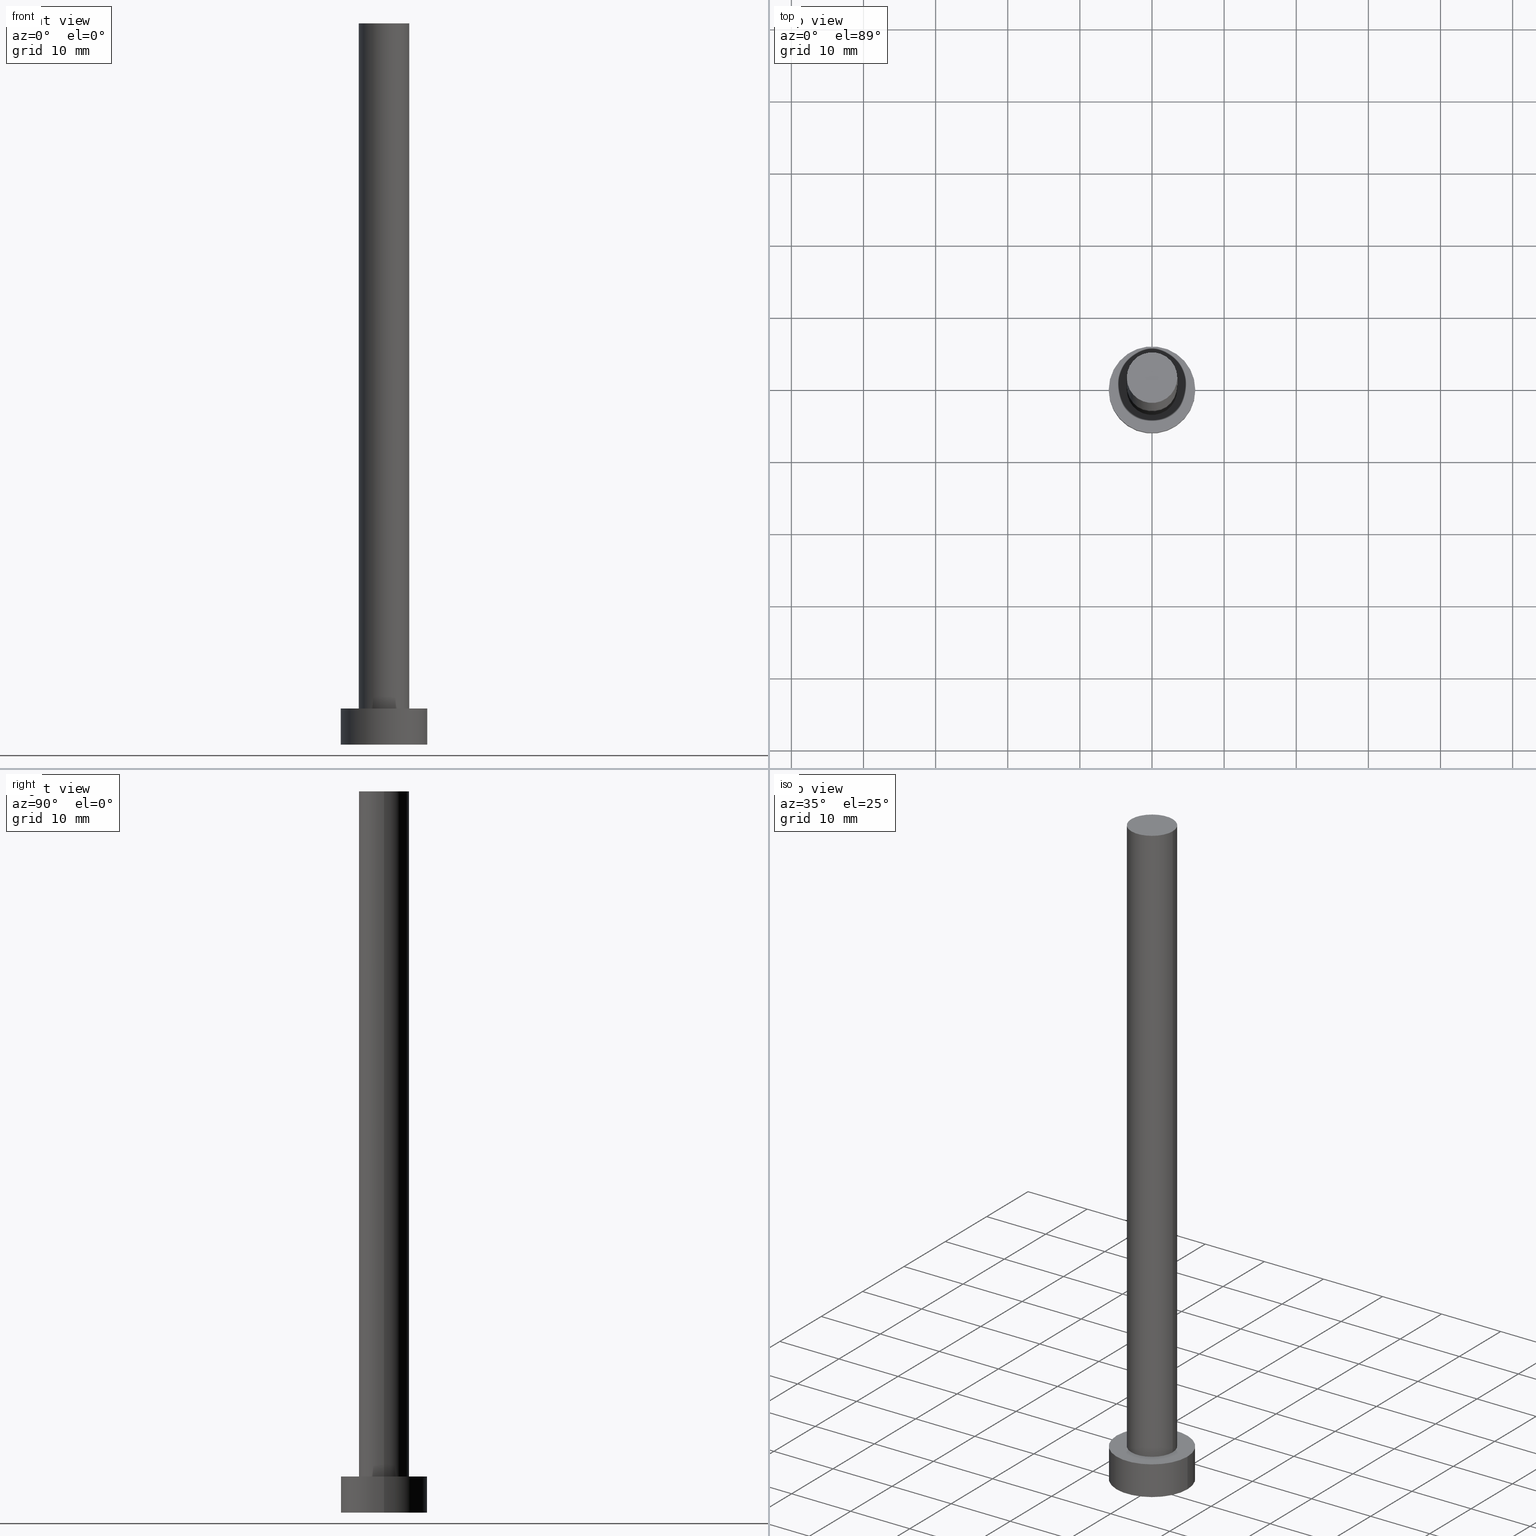
[diagram: canonical four-view strip — front | top / right | iso, engineering-drawing reading convention]
A machine part, canonical four-view strip (front | top / right | iso — engineering-drawing reading convention). The complete STEP part file that produces these views, byte-faithful:
ISO-10303-21;
HEADER;
FILE_DESCRIPTION (( 'STEP AP203' ),
    '1' );
FILE_NAME ('d741.STEP',
    '2023-02-13T15:15:37',
    ( '' ),
    ( '' ),
    'SwSTEP 2.0',
    'SolidWorks 2019',
    '' );
FILE_SCHEMA (( 'CONFIG_CONTROL_DESIGN' ));
ENDSEC;

DATA;
#1 = PERSON_AND_ORGANIZATION ( #190, #118 ) ;
#2 = ORIENTED_EDGE ( 'NONE', *, *, #59, .T. ) ;
#3 = ORIENTED_EDGE ( 'NONE', *, *, #110, .T. ) ;
#4 = AXIS2_PLACEMENT_3D ( 'NONE', #9, #80, #176 ) ;
#5 = DIRECTION ( 'NONE',  ( -0.000000000000000000, -0.000000000000000000, -1.000000000000000000 ) ) ;
#6 = DIRECTION ( 'NONE',  ( -1.000000000000000000, 0.000000000000000000, 0.000000000000000000 ) ) ;
#7 = EDGE_LOOP ( 'NONE', ( #102, #42 ) ) ;
#8 = AXIS2_PLACEMENT_3D ( 'NONE', #114, #93, #191 ) ;
#9 = CARTESIAN_POINT ( 'NONE',  ( 0.000000000000000000, 0.000000000000000000, 5.000000000000000000 ) ) ;
#10 = DIRECTION ( 'NONE',  ( 0.000000000000000000, 0.000000000000000000, 1.000000000000000000 ) ) ;
#11 = DIRECTION ( 'NONE',  ( 0.000000000000000000, 0.000000000000000000, 1.000000000000000000 ) ) ;
#12 = DATE_TIME_ROLE ( 'classification_date' ) ;
#13 = CARTESIAN_POINT ( 'NONE',  ( 0.000000000000000000, 0.000000000000000000, 100.0000000000000000 ) ) ;
#14 = AXIS2_PLACEMENT_3D ( 'NONE', #169, #185, #67 ) ;
#15 = DATE_TIME_ROLE ( 'creation_date' ) ;
#16 = ORIENTED_EDGE ( 'NONE', *, *, #103, .T. ) ;
#17 = LOCAL_TIME ( 16, 15, 37.00000000000000000, #83 ) ;
#18 = VERTEX_POINT ( 'NONE', #170 ) ;
#19 = ORIENTED_EDGE ( 'NONE', *, *, #193, .F. ) ;
#20 = PERSON_AND_ORGANIZATION_ROLE ( 'creator' ) ;
#21 = CC_DESIGN_SECURITY_CLASSIFICATION ( #92, ( #58 ) ) ;
#22 = ORIENTED_EDGE ( 'NONE', *, *, #234, .T. ) ;
#23 = ORIENTED_EDGE ( 'NONE', *, *, #59, .F. ) ;
#24 = PRODUCT_DEFINITION_SHAPE ( 'NONE', 'NONE',  #116 ) ;
#25 = PRODUCT_RELATED_PRODUCT_CATEGORY ( 'detail', '', ( #151 ) ) ;
#26 = DIRECTION ( 'NONE',  ( -1.000000000000000000, 0.000000000000000000, 0.000000000000000000 ) ) ;
#27 = LOCAL_TIME ( 16, 15, 37.00000000000000000, #54 ) ;
#28 = ORIENTED_EDGE ( 'NONE', *, *, #110, .F. ) ;
#29 = EDGE_LOOP ( 'NONE', ( #51, #111, #173, #22 ) ) ;
#30 = CIRCLE ( 'NONE', #209, 3.500000000000000000 ) ;
#31 = EDGE_CURVE ( 'NONE', #18, #154, #45, .T. ) ;
#32 = PLANE ( 'NONE',  #8 ) ;
#33 = PLANE ( 'NONE',  #141 ) ;
#34 = DIRECTION ( 'NONE',  ( -1.000000000000000000, 0.000000000000000000, 0.000000000000000000 ) ) ;
#35 = CC_DESIGN_PERSON_AND_ORGANIZATION_ASSIGNMENT ( #1, #86, ( #58 ) ) ;
#36 = APPROVAL_PERSON_ORGANIZATION ( #159, #229, #166 ) ;
#37 = CALENDAR_DATE ( 2023, 13, 2 ) ;
#38 = PERSON_AND_ORGANIZATION ( #190, #118 ) ;
#39 = ADVANCED_FACE ( 'NONE', ( #243 ), #105, .T. ) ;
#40 = CARTESIAN_POINT ( 'NONE',  ( 0.000000000000000000, 0.000000000000000000, 0.000000000000000000 ) ) ;
#41 = APPLICATION_PROTOCOL_DEFINITION ( 'international standard', 'config_control_design', 1994, #163 ) ;
#42 = ORIENTED_EDGE ( 'NONE', *, *, #213, .T. ) ;
#43 = CC_DESIGN_DATE_AND_TIME_ASSIGNMENT ( #77, #12, ( #92 ) ) ;
#44 = PERSON_AND_ORGANIZATION_ROLE ( 'design_owner' ) ;
#45 = CIRCLE ( 'NONE', #188, 6.000000000000000888 ) ;
#46 = CYLINDRICAL_SURFACE ( 'NONE', #14, 6.000000000000000888 ) ;
#47 = FACE_OUTER_BOUND ( 'NONE', #187, .T. ) ;
#48 = CARTESIAN_POINT ( 'NONE',  ( 0.000000000000000000, 0.000000000000000000, 5.000000000000000000 ) ) ;
#49 = CIRCLE ( 'NONE', #227, 6.000000000000000888 ) ;
#50 = CARTESIAN_POINT ( 'NONE',  ( 0.000000000000000000, 0.000000000000000000, 100.0000000000000000 ) ) ;
#51 = ORIENTED_EDGE ( 'NONE', *, *, #220, .F. ) ;
#52 = CARTESIAN_POINT ( 'NONE',  ( 6.000000000000000888, 7.347880794884120722E-16, 5.000000000000000000 ) ) ;
#53 = CIRCLE ( 'NONE', #198, 3.500000000000000000 ) ;
#54 = COORDINATED_UNIVERSAL_TIME_OFFSET ( 1, 0, .AHEAD. ) ;
#55 = LINE ( 'NONE', #117, #157 ) ;
#56 = CYLINDRICAL_SURFACE ( 'NONE', #126, 3.500000000000000000 ) ;
#57 = CARTESIAN_POINT ( 'NONE',  ( 6.000000000000000888, 7.347880794884120722E-16, 5.000000000000000000 ) ) ;
#58 = PRODUCT_DEFINITION_FORMATION_WITH_SPECIFIED_SOURCE ( 'LIBOVOLN�', '', #151, .NOT_KNOWN. ) ;
#59 = EDGE_CURVE ( 'NONE', #112, #241, #30, .T. ) ;
#60 = COORDINATED_UNIVERSAL_TIME_OFFSET ( 1, 0, .AHEAD. ) ;
#61 = VERTEX_POINT ( 'NONE', #156 ) ;
#62 =( NAMED_UNIT ( * ) PLANE_ANGLE_UNIT ( ) SI_UNIT ( $, .RADIAN. ) );
#63 = LOCAL_TIME ( 16, 15, 37.00000000000000000, #216 ) ;
#64 = ORIENTED_EDGE ( 'NONE', *, *, #196, .F. ) ;
#65 = APPLICATION_PROTOCOL_DEFINITION ( 'international standard', 'config_control_design', 1994, #107 ) ;
#66 = VERTEX_POINT ( 'NONE', #108 ) ;
#67 = DIRECTION ( 'NONE',  ( -1.000000000000000000, 0.000000000000000000, 0.000000000000000000 ) ) ;
#68 = UNCERTAINTY_MEASURE_WITH_UNIT (LENGTH_MEASURE( 1.000000000000000082E-05 ), #254, 'distance_accuracy_value', 'NONE');
#69 = APPROVAL ( #199, 'NEUR�EN�' ) ;
#70 = CARTESIAN_POINT ( 'NONE',  ( 6.000000000000000888, 7.347880794884120722E-16, 0.000000000000000000 ) ) ;
#71 = DIRECTION ( 'NONE',  ( 0.000000000000000000, 0.000000000000000000, 1.000000000000000000 ) ) ;
#72 = EDGE_CURVE ( 'NONE', #223, #61, #99, .T. ) ;
#73 = DIRECTION ( 'NONE',  ( 1.000000000000000000, 0.000000000000000000, 0.000000000000000000 ) ) ;
#74 = DIRECTION ( 'NONE',  ( -0.000000000000000000, -0.000000000000000000, -1.000000000000000000 ) ) ;
#75 = CARTESIAN_POINT ( 'NONE',  ( 0.000000000000000000, 0.000000000000000000, 100.0000000000000000 ) ) ;
#76 = DIRECTION ( 'NONE',  ( 1.000000000000000000, 0.000000000000000000, 0.000000000000000000 ) ) ;
#77 = DATE_AND_TIME ( #119, #63 ) ;
#78 = CC_DESIGN_APPROVAL ( #69, ( #116 ) ) ;
#79 = CARTESIAN_POINT ( 'NONE',  ( 0.000000000000000000, 0.000000000000000000, 5.000000000000000000 ) ) ;
#80 = DIRECTION ( 'NONE',  ( 0.000000000000000000, 0.000000000000000000, 1.000000000000000000 ) ) ;
#81 = SECURITY_CLASSIFICATION_LEVEL ( 'unclassified' ) ;
#82 = DIRECTION ( 'NONE',  ( 0.000000000000000000, 0.000000000000000000, 1.000000000000000000 ) ) ;
#83 = COORDINATED_UNIVERSAL_TIME_OFFSET ( 1, 0, .AHEAD. ) ;
#84 = AXIS2_PLACEMENT_3D ( 'NONE', #97, #134, #210 ) ;
#85 = EDGE_LOOP ( 'NONE', ( #23, #132, #3, #225 ) ) ;
#86 = PERSON_AND_ORGANIZATION_ROLE ( 'design_supplier' ) ;
#87 = DIRECTION ( 'NONE',  ( 1.000000000000000000, 0.000000000000000000, 0.000000000000000000 ) ) ;
#88 = CARTESIAN_POINT ( 'NONE',  ( -3.500000000000000000, 0.000000000000000000, 100.0000000000000000 ) ) ;
#89 = CARTESIAN_POINT ( 'NONE',  ( 0.000000000000000000, 0.000000000000000000, 5.000000000000000000 ) ) ;
#90 = ORIENTED_EDGE ( 'NONE', *, *, #113, .F. ) ;
#91 = DIRECTION ( 'NONE',  ( 1.000000000000000000, 0.000000000000000000, 0.000000000000000000 ) ) ;
#92 = SECURITY_CLASSIFICATION ( '', '', #81 ) ;
#93 = DIRECTION ( 'NONE',  ( 0.000000000000000000, 0.000000000000000000, 1.000000000000000000 ) ) ;
#94 = ADVANCED_FACE ( 'NONE', ( #158 ), #46, .T. ) ;
#95 = FACE_BOUND ( 'NONE', #255, .T. ) ;
#96 = CALENDAR_DATE ( 2023, 13, 2 ) ;
#97 = CARTESIAN_POINT ( 'NONE',  ( 0.000000000000000000, 0.000000000000000000, 0.000000000000000000 ) ) ;
#98 = APPROVAL_STATUS ( 'not_yet_approved' ) ;
#99 = CIRCLE ( 'NONE', #167, 3.500000000000000000 ) ;
#100 =( NAMED_UNIT ( * ) SI_UNIT ( $, .STERADIAN. ) SOLID_ANGLE_UNIT ( ) );
#101 = CLOSED_SHELL ( 'NONE', ( #253, #129, #94, #211, #140, #39, #240 ) ) ;
#102 = ORIENTED_EDGE ( 'NONE', *, *, #31, .T. ) ;
#103 = EDGE_CURVE ( 'NONE', #241, #223, #222, .T. ) ;
#104 = PERSON_AND_ORGANIZATION ( #190, #118 ) ;
#105 = CYLINDRICAL_SURFACE ( 'NONE', #180, 3.500000000000000000 ) ;
#106 = CYLINDRICAL_SURFACE ( 'NONE', #146, 6.000000000000000888 ) ;
#107 = APPLICATION_CONTEXT ( 'configuration controlled 3d designs of mechanical parts and assemblies' ) ;
#108 = CARTESIAN_POINT ( 'NONE',  ( -6.000000000000000888, 0.000000000000000000, 0.000000000000000000 ) ) ;
#109 = LOCAL_TIME ( 16, 15, 37.00000000000000000, #215 ) ;
#110 = EDGE_CURVE ( 'NONE', #61, #223, #53, .T. ) ;
#111 = ORIENTED_EDGE ( 'NONE', *, *, #31, .F. ) ;
#112 = VERTEX_POINT ( 'NONE', #238 ) ;
#113 = EDGE_CURVE ( 'NONE', #130, #66, #49, .T. ) ;
#114 = CARTESIAN_POINT ( 'NONE',  ( 0.000000000000000000, 0.000000000000000000, 100.0000000000000000 ) ) ;
#115 = AXIS2_PLACEMENT_3D ( 'NONE', #79, #160, #161 ) ;
#116 = PRODUCT_DEFINITION ( 'NEZN�M�', '', #58, #244 ) ;
#117 = CARTESIAN_POINT ( 'NONE',  ( 3.500000000000000000, 4.286263797015736595E-16, 100.0000000000000000 ) ) ;
#118 = ORGANIZATION ( 'NEUR�EN�', 'NEUR�EN�', '' ) ;
#119 = CALENDAR_DATE ( 2023, 13, 2 ) ;
#120 = DIRECTION ( 'NONE',  ( 1.000000000000000000, 0.000000000000000000, 0.000000000000000000 ) ) ;
#121 = PERSON_AND_ORGANIZATION ( #190, #118 ) ;
#122 = EDGE_LOOP ( 'NONE', ( #189, #2 ) ) ;
#123 = ORIENTED_EDGE ( 'NONE', *, *, #220, .T. ) ;
#124 = DATE_AND_TIME ( #200, #17 ) ;
#125 = APPROVAL_DATE_TIME ( #136, #229 ) ;
#126 = AXIS2_PLACEMENT_3D ( 'NONE', #75, #214, #34 ) ;
#127 = ORIENTED_EDGE ( 'NONE', *, *, #72, .T. ) ;
#128 = DIRECTION ( 'NONE',  ( 0.000000000000000000, 0.000000000000000000, 1.000000000000000000 ) ) ;
#129 = ADVANCED_FACE ( 'NONE', ( #47 ), #106, .T. ) ;
#130 = VERTEX_POINT ( 'NONE', #70 ) ;
#131 = ORIENTED_EDGE ( 'NONE', *, *, #113, .T. ) ;
#132 = ORIENTED_EDGE ( 'NONE', *, *, #193, .T. ) ;
#133 = VECTOR ( 'NONE', #5, 1000.000000000000000 ) ;
#134 = DIRECTION ( 'NONE',  ( 0.000000000000000000, 0.000000000000000000, 1.000000000000000000 ) ) ;
#135 = CC_DESIGN_PERSON_AND_ORGANIZATION_ASSIGNMENT ( #237, #20, ( #116 ) ) ;
#136 = DATE_AND_TIME ( #230, #27 ) ;
#137 = DIRECTION ( 'NONE',  ( -0.000000000000000000, -0.000000000000000000, -1.000000000000000000 ) ) ;
#138 = APPROVAL_PERSON_ORGANIZATION ( #121, #69, #183 ) ;
#139 = FACE_OUTER_BOUND ( 'NONE', #7, .T. ) ;
#140 = ADVANCED_FACE ( 'NONE', ( #155 ), #33, .F. ) ;
#141 = AXIS2_PLACEMENT_3D ( 'NONE', #195, #10, #228 ) ;
#142 = SHAPE_DEFINITION_REPRESENTATION ( #24, #150 ) ;
#143 = AXIS2_PLACEMENT_3D ( 'NONE', #13, #11, #76 ) ;
#144 = PERSON_AND_ORGANIZATION ( #190, #118 ) ;
#145 = EDGE_LOOP ( 'NONE', ( #19, #148, #16, #127 ) ) ;
#146 = AXIS2_PLACEMENT_3D ( 'NONE', #89, #239, #26 ) ;
#147 = CC_DESIGN_PERSON_AND_ORGANIZATION_ASSIGNMENT ( #144, #236, ( #92 ) ) ;
#148 = ORIENTED_EDGE ( 'NONE', *, *, #181, .F. ) ;
#149 = CC_DESIGN_DATE_AND_TIME_ASSIGNMENT ( #197, #15, ( #116 ) ) ;
#150 = ADVANCED_BREP_SHAPE_REPRESENTATION ( 'd741', ( #175, #224 ), #218 ) ;
#151 = PRODUCT ( 'd741', 'd741', '', ( #219 ) ) ;
#152 = CIRCLE ( 'NONE', #4, 6.000000000000000888 ) ;
#153 = ORIENTED_EDGE ( 'NONE', *, *, #72, .F. ) ;
#154 = VERTEX_POINT ( 'NONE', #57 ) ;
#155 = FACE_OUTER_BOUND ( 'NONE', #165, .T. ) ;
#156 = CARTESIAN_POINT ( 'NONE',  ( 3.500000000000000000, 4.286263797015736595E-16, 5.000000000000000000 ) ) ;
#157 = VECTOR ( 'NONE', #137, 1000.000000000000000 ) ;
#158 = FACE_OUTER_BOUND ( 'NONE', #29, .T. ) ;
#159 = PERSON_AND_ORGANIZATION ( #190, #118 ) ;
#160 = DIRECTION ( 'NONE',  ( 0.000000000000000000, 0.000000000000000000, 1.000000000000000000 ) ) ;
#161 = DIRECTION ( 'NONE',  ( 1.000000000000000000, 0.000000000000000000, -0.000000000000000000 ) ) ;
#162 = CC_DESIGN_APPROVAL ( #207, ( #92 ) ) ;
#163 = APPLICATION_CONTEXT ( 'configuration controlled 3d designs of mechanical parts and assemblies' ) ;
#164 = VECTOR ( 'NONE', #248, 1000.000000000000000 ) ;
#165 = EDGE_LOOP ( 'NONE', ( #186, #90 ) ) ;
#166 = APPROVAL_ROLE ( '' ) ;
#167 = AXIS2_PLACEMENT_3D ( 'NONE', #208, #128, #91 ) ;
#168 = DIRECTION ( 'NONE',  ( 1.000000000000000000, 0.000000000000000000, 0.000000000000000000 ) ) ;
#169 = CARTESIAN_POINT ( 'NONE',  ( 0.000000000000000000, 0.000000000000000000, 5.000000000000000000 ) ) ;
#170 = CARTESIAN_POINT ( 'NONE',  ( -6.000000000000000888, 0.000000000000000000, 5.000000000000000000 ) ) ;
#171 = CIRCLE ( 'NONE', #143, 3.500000000000000000 ) ;
#172 = CARTESIAN_POINT ( 'NONE',  ( 0.000000000000000000, 0.000000000000000000, 100.0000000000000000 ) ) ;
#173 = ORIENTED_EDGE ( 'NONE', *, *, #196, .T. ) ;
#174 = CARTESIAN_POINT ( 'NONE',  ( -3.500000000000000000, 0.000000000000000000, 100.0000000000000000 ) ) ;
#175 = MANIFOLD_SOLID_BREP ( 'P�idat vysunut�m3', #101 ) ;
#176 = DIRECTION ( 'NONE',  ( 1.000000000000000000, 0.000000000000000000, 0.000000000000000000 ) ) ;
#177 = CC_DESIGN_APPROVAL ( #229, ( #58 ) ) ;
#178 = DATE_AND_TIME ( #96, #235 ) ;
#179 = PLANE ( 'NONE',  #115 ) ;
#180 = AXIS2_PLACEMENT_3D ( 'NONE', #172, #74, #6 ) ;
#181 = EDGE_CURVE ( 'NONE', #241, #112, #171, .T. ) ;
#182 = APPROVAL_DATE_TIME ( #124, #69 ) ;
#183 = APPROVAL_ROLE ( '' ) ;
#184 = PERSON_AND_ORGANIZATION_ROLE ( 'creator' ) ;
#185 = DIRECTION ( 'NONE',  ( -0.000000000000000000, -0.000000000000000000, -1.000000000000000000 ) ) ;
#186 = ORIENTED_EDGE ( 'NONE', *, *, #234, .F. ) ;
#187 = EDGE_LOOP ( 'NONE', ( #201, #123, #131, #64 ) ) ;
#188 = AXIS2_PLACEMENT_3D ( 'NONE', #245, #206, #87 ) ;
#189 = ORIENTED_EDGE ( 'NONE', *, *, #181, .T. ) ;
#190 = PERSON ( 'NEUR�EN�', 'NEUR�EN�', 'NEUR�EN�', ('NEUR�EN�'), ('NEUR�EN�'), ('NEUR�EN�') ) ;
#191 = DIRECTION ( 'NONE',  ( 1.000000000000000000, 0.000000000000000000, -0.000000000000000000 ) ) ;
#192 = CARTESIAN_POINT ( 'NONE',  ( -6.000000000000000888, 0.000000000000000000, 5.000000000000000000 ) ) ;
#193 = EDGE_CURVE ( 'NONE', #112, #61, #55, .T. ) ;
#194 = LINE ( 'NONE', #192, #252 ) ;
#195 = CARTESIAN_POINT ( 'NONE',  ( 0.000000000000000000, 0.000000000000000000, 0.000000000000000000 ) ) ;
#196 = EDGE_CURVE ( 'NONE', #18, #66, #194, .T. ) ;
#197 = DATE_AND_TIME ( #37, #109 ) ;
#198 = AXIS2_PLACEMENT_3D ( 'NONE', #48, #202, #168 ) ;
#199 = APPROVAL_STATUS ( 'not_yet_approved' ) ;
#200 = CALENDAR_DATE ( 2023, 13, 2 ) ;
#201 = ORIENTED_EDGE ( 'NONE', *, *, #213, .F. ) ;
#202 = DIRECTION ( 'NONE',  ( 0.000000000000000000, 0.000000000000000000, 1.000000000000000000 ) ) ;
#203 = DIRECTION ( 'NONE',  ( 0.000000000000000000, 0.000000000000000000, 1.000000000000000000 ) ) ;
#204 = DIRECTION ( 'NONE',  ( 1.000000000000000000, 0.000000000000000000, 0.000000000000000000 ) ) ;
#205 = APPROVAL_PERSON_ORGANIZATION ( #38, #207, #251 ) ;
#206 = DIRECTION ( 'NONE',  ( 0.000000000000000000, 0.000000000000000000, 1.000000000000000000 ) ) ;
#207 = APPROVAL ( #98, 'NEUR�EN�' ) ;
#208 = CARTESIAN_POINT ( 'NONE',  ( 0.000000000000000000, 0.000000000000000000, 5.000000000000000000 ) ) ;
#209 = AXIS2_PLACEMENT_3D ( 'NONE', #50, #71, #73 ) ;
#210 = DIRECTION ( 'NONE',  ( 1.000000000000000000, 0.000000000000000000, 0.000000000000000000 ) ) ;
#211 = ADVANCED_FACE ( 'NONE', ( #95, #139 ), #179, .T. ) ;
#212 = CARTESIAN_POINT ( 'NONE',  ( -3.500000000000000000, 0.000000000000000000, 5.000000000000000000 ) ) ;
#213 = EDGE_CURVE ( 'NONE', #154, #18, #152, .T. ) ;
#214 = DIRECTION ( 'NONE',  ( -0.000000000000000000, -0.000000000000000000, -1.000000000000000000 ) ) ;
#215 = COORDINATED_UNIVERSAL_TIME_OFFSET ( 1, 0, .AHEAD. ) ;
#216 = COORDINATED_UNIVERSAL_TIME_OFFSET ( 1, 0, .AHEAD. ) ;
#217 = PERSON_AND_ORGANIZATION ( #190, #118 ) ;
#218 =( GEOMETRIC_REPRESENTATION_CONTEXT ( 3 ) GLOBAL_UNCERTAINTY_ASSIGNED_CONTEXT ( ( #68 ) ) GLOBAL_UNIT_ASSIGNED_CONTEXT ( ( #254, #62, #100 ) ) REPRESENTATION_CONTEXT ( 'NONE', 'WORKASPACE' ) );
#219 = MECHANICAL_CONTEXT ( 'NONE', #107, 'mechanical' ) ;
#220 = EDGE_CURVE ( 'NONE', #154, #130, #233, .T. ) ;
#221 = CARTESIAN_POINT ( 'NONE',  ( 0.000000000000000000, 0.000000000000000000, 0.000000000000000000 ) ) ;
#222 = LINE ( 'NONE', #88, #133 ) ;
#223 = VERTEX_POINT ( 'NONE', #212 ) ;
#224 = AXIS2_PLACEMENT_3D ( 'NONE', #40, #82, #120 ) ;
#225 = ORIENTED_EDGE ( 'NONE', *, *, #103, .F. ) ;
#226 = APPROVAL_STATUS ( 'not_yet_approved' ) ;
#227 = AXIS2_PLACEMENT_3D ( 'NONE', #221, #203, #204 ) ;
#228 = DIRECTION ( 'NONE',  ( 1.000000000000000000, 0.000000000000000000, -0.000000000000000000 ) ) ;
#229 = APPROVAL ( #226, 'NEUR�EN�' ) ;
#230 = CALENDAR_DATE ( 2023, 13, 2 ) ;
#231 = FACE_OUTER_BOUND ( 'NONE', #122, .T. ) ;
#232 = APPROVAL_DATE_TIME ( #178, #207 ) ;
#233 = LINE ( 'NONE', #52, #164 ) ;
#234 = EDGE_CURVE ( 'NONE', #66, #130, #249, .T. ) ;
#235 = LOCAL_TIME ( 16, 15, 37.00000000000000000, #60 ) ;
#236 = PERSON_AND_ORGANIZATION_ROLE ( 'classification_officer' ) ;
#237 = PERSON_AND_ORGANIZATION ( #190, #118 ) ;
#238 = CARTESIAN_POINT ( 'NONE',  ( 3.500000000000000000, 4.286263797015736595E-16, 100.0000000000000000 ) ) ;
#239 = DIRECTION ( 'NONE',  ( -0.000000000000000000, -0.000000000000000000, -1.000000000000000000 ) ) ;
#240 = ADVANCED_FACE ( 'NONE', ( #231 ), #32, .T. ) ;
#241 = VERTEX_POINT ( 'NONE', #174 ) ;
#242 = CC_DESIGN_PERSON_AND_ORGANIZATION_ASSIGNMENT ( #104, #184, ( #58 ) ) ;
#243 = FACE_OUTER_BOUND ( 'NONE', #145, .T. ) ;
#244 = DESIGN_CONTEXT ( 'detailed design', #163, 'design' ) ;
#245 = CARTESIAN_POINT ( 'NONE',  ( 0.000000000000000000, 0.000000000000000000, 5.000000000000000000 ) ) ;
#246 = FACE_OUTER_BOUND ( 'NONE', #85, .T. ) ;
#247 = CC_DESIGN_PERSON_AND_ORGANIZATION_ASSIGNMENT ( #217, #44, ( #151 ) ) ;
#248 = DIRECTION ( 'NONE',  ( -0.000000000000000000, -0.000000000000000000, -1.000000000000000000 ) ) ;
#249 = CIRCLE ( 'NONE', #84, 6.000000000000000888 ) ;
#250 = DIRECTION ( 'NONE',  ( -0.000000000000000000, -0.000000000000000000, -1.000000000000000000 ) ) ;
#251 = APPROVAL_ROLE ( '' ) ;
#252 = VECTOR ( 'NONE', #250, 1000.000000000000000 ) ;
#253 = ADVANCED_FACE ( 'NONE', ( #246 ), #56, .T. ) ;
#254 =( LENGTH_UNIT ( ) NAMED_UNIT ( * ) SI_UNIT ( .MILLI., .METRE. ) );
#255 = EDGE_LOOP ( 'NONE', ( #153, #28 ) ) ;
ENDSEC;
END-ISO-10303-21;
